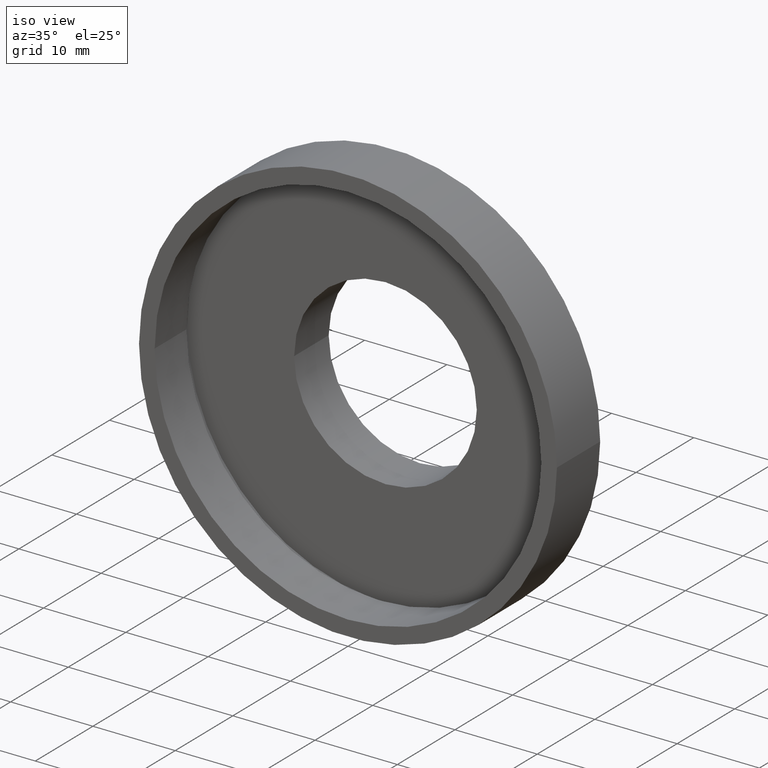
[diagram: clean part render]
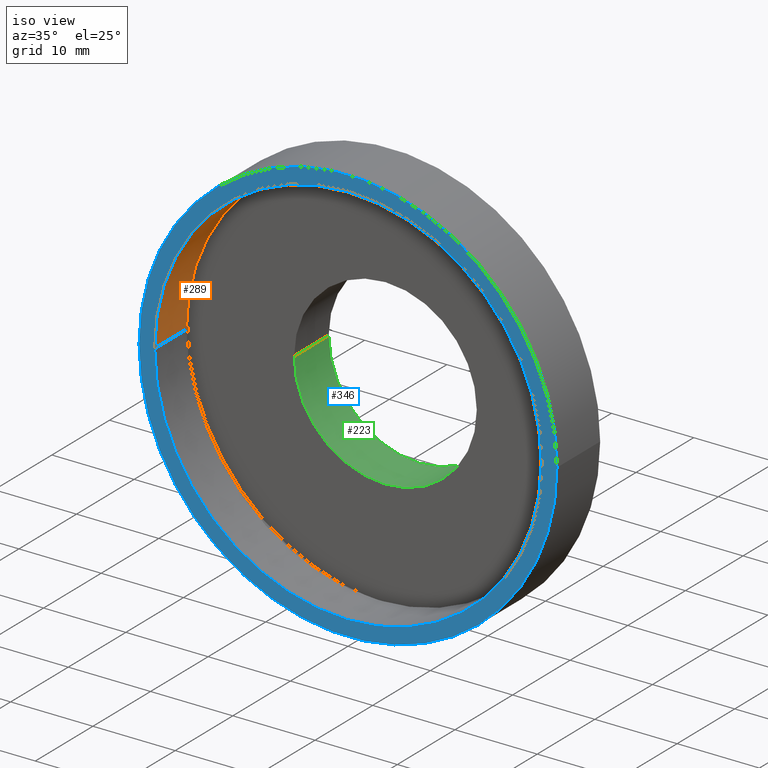
[diagram: same view with three faces highlighted in distinct colors, each labeled with its STEP entity id]
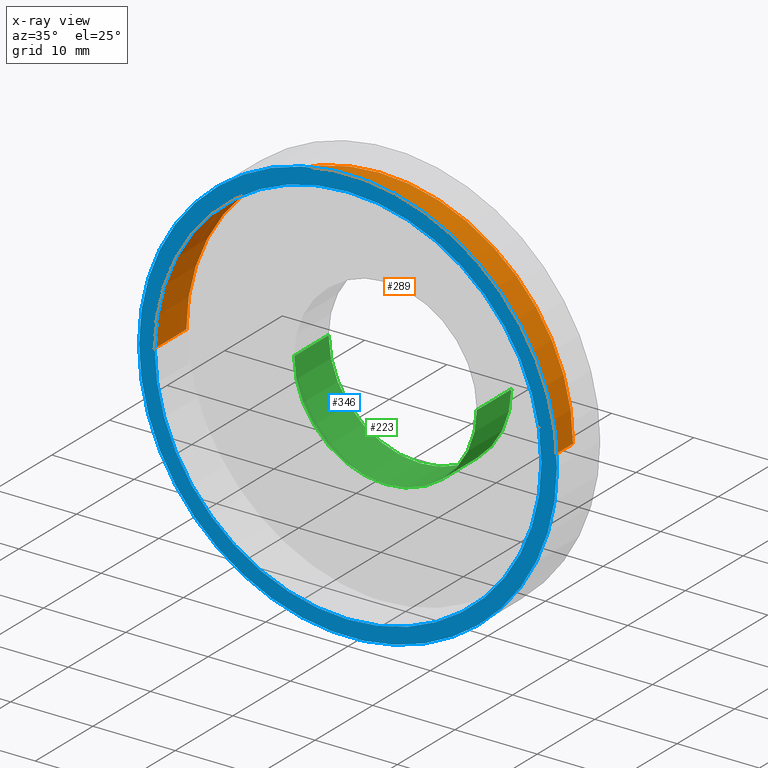
[diagram: x-ray of the same camera — body ghosted, the three highlighted faces saturated]
A machine part, iso view with three faces highlighted in distinct colors.
The next image is the same camera in x-ray (body ghosted, the three faces saturated) — at least one of them is partly hidden behind the body in this view.
Their STEP definitions:

[orange] entity #289 — the highlighted cylindrical surface (partial cylindrical patch) has radius 23.5 mm, axis along (-0, 1, -0).
#31 = DIRECTION ( 'NONE',  ( -1.000000000000000000, -1.107270303814983000E-016, 0.0000000000000000000 ) ) ;
#55 = AXIS2_PLACEMENT_3D ( 'NONE', #377, #375, #338 ) ;
#61 = AXIS2_PLACEMENT_3D ( 'NONE', #428, #398, #31 ) ;
#72 = CIRCLE ( 'NONE', #61, 23.50000000000000400 ) ;
#83 = VERTEX_POINT ( 'NONE', #570 ) ;
#143 = LINE ( 'NONE', #433, #522 ) ;
#172 = VERTEX_POINT ( 'NONE', #487 ) ;
#176 = DIRECTION ( 'NONE',  ( -1.224646799147351000E-016, 1.000000000000000000, -0.0000000000000000000 ) ) ;
#197 = EDGE_LOOP ( 'NONE', ( #257, #384, #314, #575 ) ) ;
#257 = ORIENTED_EDGE ( 'NONE', *, *, #493, .F. ) ;
#263 = CARTESIAN_POINT ( 'NONE',  ( 23.50000000000000000, 16.88601823708208000, 2.877919977996280300E-015 ) ) ;
#280 = CIRCLE ( 'NONE', #55, 23.50000000000000000 ) ;
#289 = ADVANCED_FACE ( 'NONE', ( #492 ), #555, .F. ) ;
#303 = AXIS2_PLACEMENT_3D ( 'NONE', #495, #540, #580 ) ;
#314 = ORIENTED_EDGE ( 'NONE', *, *, #573, .T. ) ;
#338 = DIRECTION ( 'NONE',  ( -1.000000000000000000, -1.224646799147351200E-016, 0.0000000000000000000 ) ) ;
#371 = VECTOR ( 'NONE', #591, 1000.000000000000000 ) ;
#375 = DIRECTION ( 'NONE',  ( -1.224646799147351000E-016, 1.000000000000000000, -0.0000000000000000000 ) ) ;
#377 = CARTESIAN_POINT ( 'NONE',  ( 2.067940818438636500E-015, -3.469446951953614200E-015, 0.0000000000000000000 ) ) ;
#380 = CARTESIAN_POINT ( 'NONE',  ( 23.50000000000000700, 5.499999999999999100, 2.877919977996281100E-015 ) ) ;
#384 = ORIENTED_EDGE ( 'NONE', *, *, #568, .F. ) ;
#398 = DIRECTION ( 'NONE',  ( -1.224646799147351000E-016, 1.000000000000000000, -0.0000000000000000000 ) ) ;
#428 = CARTESIAN_POINT ( 'NONE',  ( 1.394385078907593200E-015, 5.499999999999996400, 0.0000000000000000000 ) ) ;
#430 = VERTEX_POINT ( 'NONE', #556 ) ;
#433 = CARTESIAN_POINT ( 'NONE',  ( -23.50000000000000000, 16.88601823708207300, 0.0000000000000000000 ) ) ;
#487 = CARTESIAN_POINT ( 'NONE',  ( -23.49999999999999600, -6.347366929949889400E-015, 0.0000000000000000000 ) ) ;
#492 = FACE_OUTER_BOUND ( 'NONE', #197, .T. ) ;
#493 = EDGE_CURVE ( 'NONE', #83, #583, #613, .T. ) ;
#495 = CARTESIAN_POINT ( 'NONE',  ( 0.0000000000000000000, 16.88601823708207700, 0.0000000000000000000 ) ) ;
#522 = VECTOR ( 'NONE', #176, 1000.000000000000000 ) ;
#540 = DIRECTION ( 'NONE',  ( -1.224646799147351000E-016, 1.000000000000000000, -0.0000000000000000000 ) ) ;
#555 = CYLINDRICAL_SURFACE ( 'NONE', #303, 23.50000000000000000 ) ;
#556 = CARTESIAN_POINT ( 'NONE',  ( -23.50000000000000400, 5.499999999999993800, 0.0000000000000000000 ) ) ;
#557 = EDGE_CURVE ( 'NONE', #430, #583, #72, .T. ) ;
#568 = EDGE_CURVE ( 'NONE', #172, #83, #280, .T. ) ;
#570 = CARTESIAN_POINT ( 'NONE',  ( 23.50000000000000700, -5.915269739573390000E-016, 2.877919977996281100E-015 ) ) ;
#573 = EDGE_CURVE ( 'NONE', #172, #430, #143, .T. ) ;
#575 = ORIENTED_EDGE ( 'NONE', *, *, #557, .T. ) ;
#580 = DIRECTION ( 'NONE',  ( -1.000000000000000000, -1.476360405086644300E-016, 0.0000000000000000000 ) ) ;
#583 = VERTEX_POINT ( 'NONE', #380 ) ;
#591 = DIRECTION ( 'NONE',  ( -1.224646799147351000E-016, 1.000000000000000000, -0.0000000000000000000 ) ) ;
#613 = LINE ( 'NONE', #263, #371 ) ;

[blue] entity #346 — the highlighted planar face has unit normal (-0, 1, 0).
#11 = VERTEX_POINT ( 'NONE', #434 ) ;
#55 = AXIS2_PLACEMENT_3D ( 'NONE', #377, #375, #338 ) ;
#75 = EDGE_LOOP ( 'NONE', ( #326, #373 ) ) ;
#83 = VERTEX_POINT ( 'NONE', #570 ) ;
#112 = AXIS2_PLACEMENT_3D ( 'NONE', #274, #435, #480 ) ;
#119 = CIRCLE ( 'NONE', #141, 25.39999999999999500 ) ;
#141 = AXIS2_PLACEMENT_3D ( 'NONE', #513, #558, #268 ) ;
#147 = VERTEX_POINT ( 'NONE', #443 ) ;
#172 = VERTEX_POINT ( 'NONE', #487 ) ;
#200 = AXIS2_PLACEMENT_3D ( 'NONE', #504, #501, #311 ) ;
#265 = ORIENTED_EDGE ( 'NONE', *, *, #568, .T. ) ;
#268 = DIRECTION ( 'NONE',  ( -1.000000000000000000, -1.224646799147351000E-016, 0.0000000000000000000 ) ) ;
#274 = CARTESIAN_POINT ( 'NONE',  ( 2.067940818438636500E-015, -3.469446951953614200E-015, 0.0000000000000000000 ) ) ;
#280 = CIRCLE ( 'NONE', #55, 23.50000000000000000 ) ;
#306 = EDGE_CURVE ( 'NONE', #83, #172, #427, .T. ) ;
#311 = DIRECTION ( 'NONE',  ( -1.000000000000000000, -1.224646799147351000E-016, 0.0000000000000000000 ) ) ;
#312 = AXIS2_PLACEMENT_3D ( 'NONE', #409, #550, #623 ) ;
#326 = ORIENTED_EDGE ( 'NONE', *, *, #519, .F. ) ;
#338 = DIRECTION ( 'NONE',  ( -1.000000000000000000, -1.224646799147351200E-016, 0.0000000000000000000 ) ) ;
#346 = ADVANCED_FACE ( 'NONE', ( #592, #481 ), #585, .F. ) ;
#358 = CIRCLE ( 'NONE', #112, 25.39999999999999500 ) ;
#373 = ORIENTED_EDGE ( 'NONE', *, *, #488, .F. ) ;
#375 = DIRECTION ( 'NONE',  ( -1.224646799147351000E-016, 1.000000000000000000, -0.0000000000000000000 ) ) ;
#377 = CARTESIAN_POINT ( 'NONE',  ( 2.067940818438636500E-015, -3.469446951953614200E-015, 0.0000000000000000000 ) ) ;
#409 = CARTESIAN_POINT ( 'NONE',  ( 2.067940818438636500E-015, -3.469446951953614200E-015, 0.0000000000000000000 ) ) ;
#427 = CIRCLE ( 'NONE', #312, 23.50000000000000000 ) ;
#434 = CARTESIAN_POINT ( 'NONE',  ( 25.39999999999999900, -3.588440821193433400E-016, 3.110602869834276900E-015 ) ) ;
#435 = DIRECTION ( 'NONE',  ( -1.224646799147351000E-016, 1.000000000000000000, -0.0000000000000000000 ) ) ;
#443 = CARTESIAN_POINT ( 'NONE',  ( -25.39999999999999100, -6.580049821787884700E-015, 0.0000000000000000000 ) ) ;
#461 = EDGE_LOOP ( 'NONE', ( #265, #474 ) ) ;
#474 = ORIENTED_EDGE ( 'NONE', *, *, #306, .T. ) ;
#480 = DIRECTION ( 'NONE',  ( -1.000000000000000000, -1.224646799147351000E-016, 0.0000000000000000000 ) ) ;
#481 = FACE_BOUND ( 'NONE', #461, .T. ) ;
#487 = CARTESIAN_POINT ( 'NONE',  ( -23.49999999999999600, -6.347366929949889400E-015, 0.0000000000000000000 ) ) ;
#488 = EDGE_CURVE ( 'NONE', #11, #147, #119, .T. ) ;
#501 = DIRECTION ( 'NONE',  ( -1.224646799147351000E-016, 1.000000000000000000, 0.0000000000000000000 ) ) ;
#504 = CARTESIAN_POINT ( 'NONE',  ( 25.39999999999999900, -1.592040838891564000E-016, 0.0000000000000000000 ) ) ;
#513 = CARTESIAN_POINT ( 'NONE',  ( 2.067940818438636500E-015, -3.469446951953614200E-015, 0.0000000000000000000 ) ) ;
#519 = EDGE_CURVE ( 'NONE', #147, #11, #358, .T. ) ;
#550 = DIRECTION ( 'NONE',  ( -1.224646799147351000E-016, 1.000000000000000000, -0.0000000000000000000 ) ) ;
#558 = DIRECTION ( 'NONE',  ( -1.224646799147351000E-016, 1.000000000000000000, -0.0000000000000000000 ) ) ;
#568 = EDGE_CURVE ( 'NONE', #172, #83, #280, .T. ) ;
#570 = CARTESIAN_POINT ( 'NONE',  ( 23.50000000000000700, -5.915269739573390000E-016, 2.877919977996281100E-015 ) ) ;
#585 = PLANE ( 'NONE',  #200 ) ;
#592 = FACE_OUTER_BOUND ( 'NONE', #75, .T. ) ;
#623 = DIRECTION ( 'NONE',  ( -1.000000000000000000, -1.224646799147351200E-016, 0.0000000000000000000 ) ) ;

[green] entity #223 — the highlighted cylindrical surface (partial cylindrical patch) has radius 11.1 mm, axis along (-0, 1, -0).
#1 = LINE ( 'NONE', #207, #258 ) ;
#2 = EDGE_CURVE ( 'NONE', #204, #66, #220, .T. ) ;
#12 = DIRECTION ( 'NONE',  ( -1.224646799147351000E-016, 1.000000000000000000, -0.0000000000000000000 ) ) ;
#29 = CARTESIAN_POINT ( 'NONE',  ( 11.10000000000000100, 16.88601823708207700, 1.359357947053562400E-015 ) ) ;
#33 = DIRECTION ( 'NONE',  ( -1.224646799147351000E-016, 1.000000000000000000, -0.0000000000000000000 ) ) ;
#60 = DIRECTION ( 'NONE',  ( -1.224646799147351000E-016, 1.000000000000000000, -0.0000000000000000000 ) ) ;
#66 = VERTEX_POINT ( 'NONE', #231 ) ;
#73 = ORIENTED_EDGE ( 'NONE', *, *, #482, .F. ) ;
#76 = CARTESIAN_POINT ( 'NONE',  ( -11.10000000000000100, 12.49999999999999500, 0.0000000000000000000 ) ) ;
#152 = AXIS2_PLACEMENT_3D ( 'NONE', #319, #12, #366 ) ;
#168 = DIRECTION ( 'NONE',  ( -1.224646799147351000E-016, 1.000000000000000000, -0.0000000000000000000 ) ) ;
#169 = AXIS2_PLACEMENT_3D ( 'NONE', #563, #168, #599 ) ;
#204 = VERTEX_POINT ( 'NONE', #295 ) ;
#207 = CARTESIAN_POINT ( 'NONE',  ( -11.10000000000000100, 16.88601823708207700, 0.0000000000000000000 ) ) ;
#220 = LINE ( 'NONE', #29, #230 ) ;
#223 = ADVANCED_FACE ( 'NONE', ( #304 ), #456, .F. ) ;
#230 = VECTOR ( 'NONE', #335, 1000.000000000000000 ) ;
#231 = CARTESIAN_POINT ( 'NONE',  ( 11.10000000000000100, 12.49999999999999800, 1.359357947053562400E-015 ) ) ;
#258 = VECTOR ( 'NONE', #60, 1000.000000000000000 ) ;
#259 = ORIENTED_EDGE ( 'NONE', *, *, #2, .T. ) ;
#264 = VERTEX_POINT ( 'NONE', #76 ) ;
#270 = CIRCLE ( 'NONE', #169, 11.10000000000000000 ) ;
#295 = CARTESIAN_POINT ( 'NONE',  ( 11.10000000000000100, 6.499999999999999100, 1.359357947053562400E-015 ) ) ;
#304 = FACE_OUTER_BOUND ( 'NONE', #489, .T. ) ;
#319 = CARTESIAN_POINT ( 'NONE',  ( 5.371323195044474300E-016, 12.49999999999999600, 0.0000000000000000000 ) ) ;
#333 = DIRECTION ( 'NONE',  ( -1.000000000000000000, 0.0000000000000000000, 0.0000000000000000000 ) ) ;
#335 = DIRECTION ( 'NONE',  ( -1.224646799147351000E-016, 1.000000000000000000, -0.0000000000000000000 ) ) ;
#366 = DIRECTION ( 'NONE',  ( -1.000000000000000000, -1.562813942321447500E-016, 0.0000000000000000000 ) ) ;
#411 = AXIS2_PLACEMENT_3D ( 'NONE', #527, #33, #333 ) ;
#456 = CYLINDRICAL_SURFACE ( 'NONE', #411, 11.10000000000000100 ) ;
#479 = EDGE_CURVE ( 'NONE', #204, #511, #270, .T. ) ;
#482 = EDGE_CURVE ( 'NONE', #511, #264, #1, .T. ) ;
#486 = EDGE_CURVE ( 'NONE', #66, #264, #514, .T. ) ;
#489 = EDGE_LOOP ( 'NONE', ( #588, #259, #496, #73 ) ) ;
#496 = ORIENTED_EDGE ( 'NONE', *, *, #486, .T. ) ;
#511 = VERTEX_POINT ( 'NONE', #593 ) ;
#514 = CIRCLE ( 'NONE', #152, 11.10000000000000100 ) ;
#527 = CARTESIAN_POINT ( 'NONE',  ( 0.0000000000000000000, 16.88601823708207700, 0.0000000000000000000 ) ) ;
#563 = CARTESIAN_POINT ( 'NONE',  ( 1.271920398992858000E-015, 6.499999999999997300, 0.0000000000000000000 ) ) ;
#588 = ORIENTED_EDGE ( 'NONE', *, *, #479, .F. ) ;
#593 = CARTESIAN_POINT ( 'NONE',  ( -11.09999999999999800, 6.499999999999995600, 0.0000000000000000000 ) ) ;
#599 = DIRECTION ( 'NONE',  ( -1.000000000000000000, -1.562813942321447800E-016, 0.0000000000000000000 ) ) ;